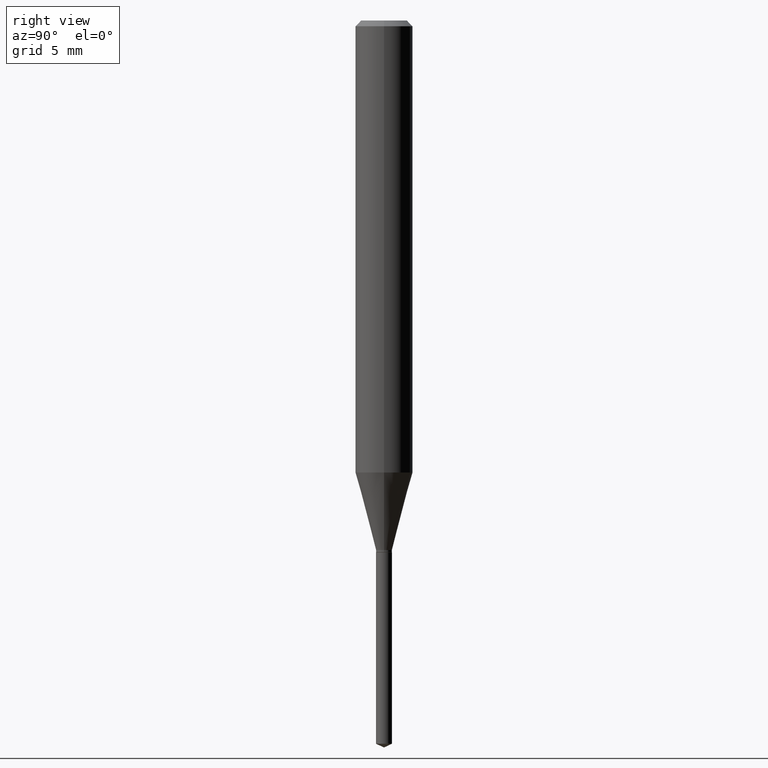
[diagram: clean part render]
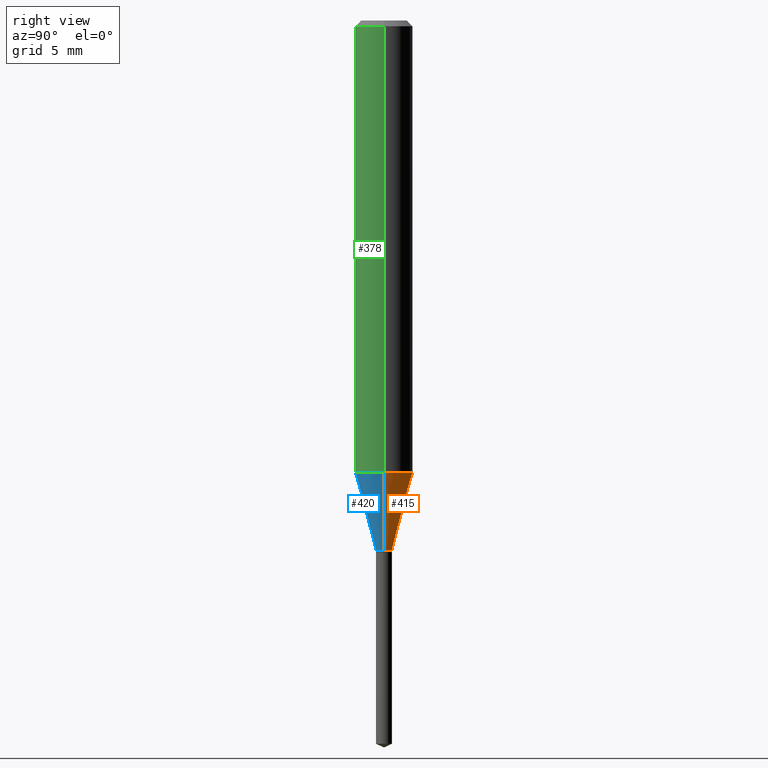
[diagram: same view with three faces highlighted in distinct colors, each labeled with its STEP entity id]
A machine part, right view with three faces highlighted in distinct colors.
Their STEP definitions:

[orange] entity #415 — the highlighted conical surface has half-angle 15 deg.
#22 = CARTESIAN_POINT ( 'NONE',  ( 0.01634999999999999995, -3.918489506583662316E-15, -1.089600000000000124 ) ) ;
#34 = DIRECTION ( 'NONE',  ( 1.000000000000000000, -6.982962677686270655E-15, 0.000000000000000000 ) ) ;
#85 = ORIENTED_EDGE ( 'NONE', *, *, #398, .T. ) ;
#98 = EDGE_LOOP ( 'NONE', ( #85, #351, #275, #311 ) ) ;
#107 = DIRECTION ( 'NONE',  ( -0.2588190451025213501, 5.211531920934551042E-15, 0.9659258262890682012 ) ) ;
#146 = CARTESIAN_POINT ( 'NONE',  ( -0.01634999999999999995, -3.688144329506715042E-15, -1.089600000000000124 ) ) ;
#151 = CARTESIAN_POINT ( 'NONE',  ( 2.664582811219324806E-29, -3.804318066803491249E-15, -1.089600000000000124 ) ) ;
#156 = CIRCLE ( 'NONE', #263, 0.05905000000000010935 ) ;
#172 = LINE ( 'NONE', #22, #202 ) ;
#186 = AXIS2_PLACEMENT_3D ( 'NONE', #151, #379, #34 ) ;
#188 = FACE_OUTER_BOUND ( 'NONE', #98, .T. ) ;
#194 = VECTOR ( 'NONE', #107, 39.37007874015747433 ) ;
#202 = VECTOR ( 'NONE', #221, 39.37007874015747433 ) ;
#217 = LINE ( 'NONE', #146, #194 ) ;
#221 = DIRECTION ( 'NONE',  ( 0.2588190451025213501, 1.565188264969621968E-15, 0.9659258262890682012 ) ) ;
#225 = EDGE_CURVE ( 'NONE', #293, #241, #217, .T. ) ;
#234 = DIRECTION ( 'NONE',  ( -2.445468806185136597E-29, 3.491481338843145583E-15, 1.000000000000000000 ) ) ;
#238 = VERTEX_POINT ( 'NONE', #366 ) ;
#241 = VERTEX_POINT ( 'NONE', #292 ) ;
#263 = AXIS2_PLACEMENT_3D ( 'NONE', #331, #437, #325 ) ;
#266 = CARTESIAN_POINT ( 'NONE',  ( 2.664582811219324806E-29, -3.804318066803491249E-15, -1.089600000000000124 ) ) ;
#275 = ORIENTED_EDGE ( 'NONE', *, *, #327, .F. ) ;
#286 = EDGE_CURVE ( 'NONE', #238, #473, #172, .T. ) ;
#292 = CARTESIAN_POINT ( 'NONE',  ( -0.05905000000000010935, -2.828345109801851148E-15, -0.9302414305168089648 ) ) ;
#293 = VERTEX_POINT ( 'NONE', #368 ) ;
#311 = ORIENTED_EDGE ( 'NONE', *, *, #286, .F. ) ;
#325 = DIRECTION ( 'NONE',  ( 1.000000000000000000, -6.982962677686267499E-15, 0.000000000000000000 ) ) ;
#327 = EDGE_CURVE ( 'NONE', #473, #241, #156, .T. ) ;
#331 = CARTESIAN_POINT ( 'NONE',  ( 2.274876400549894550E-29, -3.247920595268191429E-15, -0.9302414305168089648 ) ) ;
#351 = ORIENTED_EDGE ( 'NONE', *, *, #225, .T. ) ;
#366 = CARTESIAN_POINT ( 'NONE',  ( 0.01634999999999999995, -3.918489506583662316E-15, -1.089600000000000124 ) ) ;
#368 = CARTESIAN_POINT ( 'NONE',  ( -0.01634999999999999995, -3.695825588452169658E-15, -1.089600000000000124 ) ) ;
#376 = CARTESIAN_POINT ( 'NONE',  ( 0.05905000000000010935, -3.660264541385565561E-15, -0.9302414305168089648 ) ) ;
#379 = DIRECTION ( 'NONE',  ( -2.445468806185136597E-29, 3.491481338843145583E-15, 1.000000000000000000 ) ) ;
#385 = CONICAL_SURFACE ( 'NONE', #463, 0.01634999999999999995, 0.2617993877991500740 ) ;
#398 = EDGE_CURVE ( 'NONE', #238, #293, #448, .T. ) ;
#415 = ADVANCED_FACE ( 'NONE', ( #188 ), #385, .T. ) ;
#437 = DIRECTION ( 'NONE',  ( -2.445468806185136597E-29, 3.491481338843145583E-15, 1.000000000000000000 ) ) ;
#448 = CIRCLE ( 'NONE', #186, 0.01634999999999999995 ) ;
#463 = AXIS2_PLACEMENT_3D ( 'NONE', #266, #234, #485 ) ;
#473 = VERTEX_POINT ( 'NONE', #376 ) ;
#485 = DIRECTION ( 'NONE',  ( 1.000000000000000000, -6.982962677686270655E-15, 0.000000000000000000 ) ) ;

[blue] entity #420 — the highlighted conical surface has half-angle 15 deg.
#17 = CARTESIAN_POINT ( 'NONE',  ( 2.664582811219324806E-29, -3.804318066803491249E-15, -1.089600000000000124 ) ) ;
#22 = CARTESIAN_POINT ( 'NONE',  ( 0.01634999999999999995, -3.918489506583662316E-15, -1.089600000000000124 ) ) ;
#30 = CONICAL_SURFACE ( 'NONE', #334, 0.01634999999999999995, 0.2617993877991500740 ) ;
#36 = DIRECTION ( 'NONE',  ( 1.000000000000000000, -6.982962677686270655E-15, 0.000000000000000000 ) ) ;
#62 = CARTESIAN_POINT ( 'NONE',  ( 2.274876400549894550E-29, -3.247920595268191429E-15, -0.9302414305168089648 ) ) ;
#65 = ORIENTED_EDGE ( 'NONE', *, *, #225, .F. ) ;
#107 = DIRECTION ( 'NONE',  ( -0.2588190451025213501, 5.211531920934551042E-15, 0.9659258262890682012 ) ) ;
#134 = EDGE_CURVE ( 'NONE', #293, #238, #407, .T. ) ;
#136 = DIRECTION ( 'NONE',  ( -2.445468806185136597E-29, 3.491481338843145583E-15, 1.000000000000000000 ) ) ;
#138 = EDGE_LOOP ( 'NONE', ( #65, #326, #314, #422 ) ) ;
#146 = CARTESIAN_POINT ( 'NONE',  ( -0.01634999999999999995, -3.688144329506715042E-15, -1.089600000000000124 ) ) ;
#153 = FACE_OUTER_BOUND ( 'NONE', #138, .T. ) ;
#172 = LINE ( 'NONE', #22, #202 ) ;
#194 = VECTOR ( 'NONE', #107, 39.37007874015747433 ) ;
#202 = VECTOR ( 'NONE', #221, 39.37007874015747433 ) ;
#217 = LINE ( 'NONE', #146, #194 ) ;
#219 = AXIS2_PLACEMENT_3D ( 'NONE', #17, #136, #332 ) ;
#220 = CIRCLE ( 'NONE', #484, 0.05905000000000010935 ) ;
#221 = DIRECTION ( 'NONE',  ( 0.2588190451025213501, 1.565188264969621968E-15, 0.9659258262890682012 ) ) ;
#225 = EDGE_CURVE ( 'NONE', #293, #241, #217, .T. ) ;
#230 = EDGE_CURVE ( 'NONE', #241, #473, #220, .T. ) ;
#238 = VERTEX_POINT ( 'NONE', #366 ) ;
#241 = VERTEX_POINT ( 'NONE', #292 ) ;
#248 = DIRECTION ( 'NONE',  ( -2.445468806185136597E-29, 3.491481338843145583E-15, 1.000000000000000000 ) ) ;
#264 = DIRECTION ( 'NONE',  ( -2.445468806185136597E-29, 3.491481338843145583E-15, 1.000000000000000000 ) ) ;
#286 = EDGE_CURVE ( 'NONE', #238, #473, #172, .T. ) ;
#292 = CARTESIAN_POINT ( 'NONE',  ( -0.05905000000000010935, -2.828345109801851148E-15, -0.9302414305168089648 ) ) ;
#293 = VERTEX_POINT ( 'NONE', #368 ) ;
#314 = ORIENTED_EDGE ( 'NONE', *, *, #286, .T. ) ;
#326 = ORIENTED_EDGE ( 'NONE', *, *, #134, .T. ) ;
#332 = DIRECTION ( 'NONE',  ( 1.000000000000000000, -6.982962677686270655E-15, 0.000000000000000000 ) ) ;
#334 = AXIS2_PLACEMENT_3D ( 'NONE', #451, #264, #36 ) ;
#366 = CARTESIAN_POINT ( 'NONE',  ( 0.01634999999999999995, -3.918489506583662316E-15, -1.089600000000000124 ) ) ;
#368 = CARTESIAN_POINT ( 'NONE',  ( -0.01634999999999999995, -3.695825588452169658E-15, -1.089600000000000124 ) ) ;
#376 = CARTESIAN_POINT ( 'NONE',  ( 0.05905000000000010935, -3.660264541385565561E-15, -0.9302414305168089648 ) ) ;
#407 = CIRCLE ( 'NONE', #219, 0.01634999999999999995 ) ;
#420 = ADVANCED_FACE ( 'NONE', ( #153 ), #30, .T. ) ;
#422 = ORIENTED_EDGE ( 'NONE', *, *, #230, .F. ) ;
#451 = CARTESIAN_POINT ( 'NONE',  ( 2.664582811219324806E-29, -3.804318066803491249E-15, -1.089600000000000124 ) ) ;
#473 = VERTEX_POINT ( 'NONE', #376 ) ;
#476 = DIRECTION ( 'NONE',  ( 1.000000000000000000, -6.982962677686267499E-15, 0.000000000000000000 ) ) ;
#484 = AXIS2_PLACEMENT_3D ( 'NONE', #62, #248, #476 ) ;

[green] entity #378 — the highlighted cylindrical surface (edge-blend (fillet) strip) has radius 1.4999 mm, axis along (-0, 0, 1).
#2 = EDGE_CURVE ( 'NONE', #241, #392, #281, .T. ) ;
#14 = CARTESIAN_POINT ( 'NONE',  ( 0.05905000000000005383, -4.123439461173744271E-16, 2.879382386107502672E-30 ) ) ;
#62 = CARTESIAN_POINT ( 'NONE',  ( 2.274876400549894550E-29, -3.247920595268191429E-15, -0.9302414305168089648 ) ) ;
#79 = CARTESIAN_POINT ( 'NONE',  ( 0.05904999999999999832, -4.535783407291118600E-16, -0.01181000000000006871 ) ) ;
#91 = DIRECTION ( 'NONE',  ( -2.445468806185136877E-29, 3.491481338843145188E-15, 1.000000000000000000 ) ) ;
#95 = DIRECTION ( 'NONE',  ( -2.445468806185136877E-29, 3.491481338843145188E-15, 1.000000000000000000 ) ) ;
#174 = ORIENTED_EDGE ( 'NONE', *, *, #442, .F. ) ;
#175 = VECTOR ( 'NONE', #91, 39.37007874015748143 ) ;
#176 = VECTOR ( 'NONE', #95, 39.37007874015748143 ) ;
#184 = DIRECTION ( 'NONE',  ( -2.445468806185136597E-29, 3.491481338843145583E-15, 1.000000000000000000 ) ) ;
#187 = FACE_OUTER_BOUND ( 'NONE', #200, .T. ) ;
#193 = CIRCLE ( 'NONE', #239, 0.05904999999999999832 ) ;
#200 = EDGE_LOOP ( 'NONE', ( #365, #396, #469, #174 ) ) ;
#220 = CIRCLE ( 'NONE', #484, 0.05905000000000010935 ) ;
#229 = CYLINDRICAL_SURFACE ( 'NONE', #375, 0.05905000000000005383 ) ;
#230 = EDGE_CURVE ( 'NONE', #241, #473, #220, .T. ) ;
#239 = AXIS2_PLACEMENT_3D ( 'NONE', #409, #482, #301 ) ;
#241 = VERTEX_POINT ( 'NONE', #292 ) ;
#248 = DIRECTION ( 'NONE',  ( -2.445468806185136597E-29, 3.491481338843145583E-15, 1.000000000000000000 ) ) ;
#253 = EDGE_CURVE ( 'NONE', #473, #432, #299, .T. ) ;
#281 = LINE ( 'NONE', #428, #175 ) ;
#292 = CARTESIAN_POINT ( 'NONE',  ( -0.05905000000000010935, -2.828345109801851148E-15, -0.9302414305168089648 ) ) ;
#299 = LINE ( 'NONE', #14, #176 ) ;
#301 = DIRECTION ( 'NONE',  ( 1.000000000000000000, -6.982962677686266711E-15, 0.000000000000000000 ) ) ;
#305 = DIRECTION ( 'NONE',  ( 1.000000000000000000, -6.982962677686266711E-15, 4.876176775795935793E-29 ) ) ;
#340 = CARTESIAN_POINT ( 'NONE',  ( 0.000000000000000000, 0.000000000000000000, 0.000000000000000000 ) ) ;
#345 = CARTESIAN_POINT ( 'NONE',  ( -0.05904999999999999832, -1.225002009473624692E-15, -0.01181000000000006871 ) ) ;
#365 = ORIENTED_EDGE ( 'NONE', *, *, #2, .F. ) ;
#375 = AXIS2_PLACEMENT_3D ( 'NONE', #340, #184, #305 ) ;
#376 = CARTESIAN_POINT ( 'NONE',  ( 0.05905000000000010935, -3.660264541385565561E-15, -0.9302414305168089648 ) ) ;
#378 = ADVANCED_FACE ( 'NONE', ( #187 ), #229, .T. ) ;
#392 = VERTEX_POINT ( 'NONE', #345 ) ;
#396 = ORIENTED_EDGE ( 'NONE', *, *, #230, .T. ) ;
#409 = CARTESIAN_POINT ( 'NONE',  ( 2.888098660104663328E-31, -4.123439461173779030E-17, -0.01181000000000006871 ) ) ;
#428 = CARTESIAN_POINT ( 'NONE',  ( -0.05905000000000005383, 4.195754854663395423E-16, -2.904631170795524694E-30 ) ) ;
#432 = VERTEX_POINT ( 'NONE', #79 ) ;
#442 = EDGE_CURVE ( 'NONE', #392, #432, #193, .T. ) ;
#469 = ORIENTED_EDGE ( 'NONE', *, *, #253, .T. ) ;
#473 = VERTEX_POINT ( 'NONE', #376 ) ;
#476 = DIRECTION ( 'NONE',  ( 1.000000000000000000, -6.982962677686267499E-15, 0.000000000000000000 ) ) ;
#482 = DIRECTION ( 'NONE',  ( -2.445468806185136597E-29, 3.491481338843145583E-15, 1.000000000000000000 ) ) ;
#484 = AXIS2_PLACEMENT_3D ( 'NONE', #62, #248, #476 ) ;